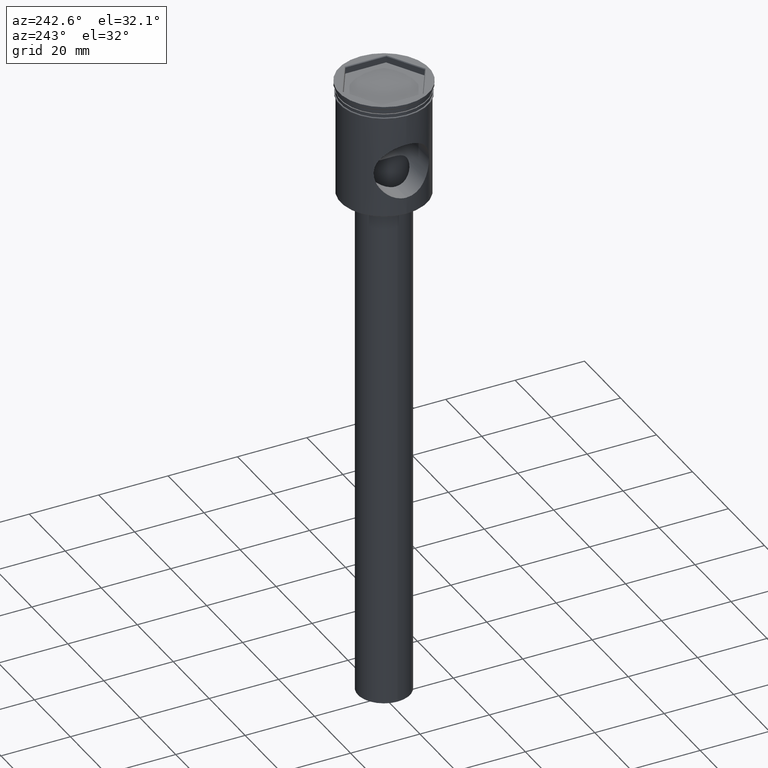
[diagram: clean part render]
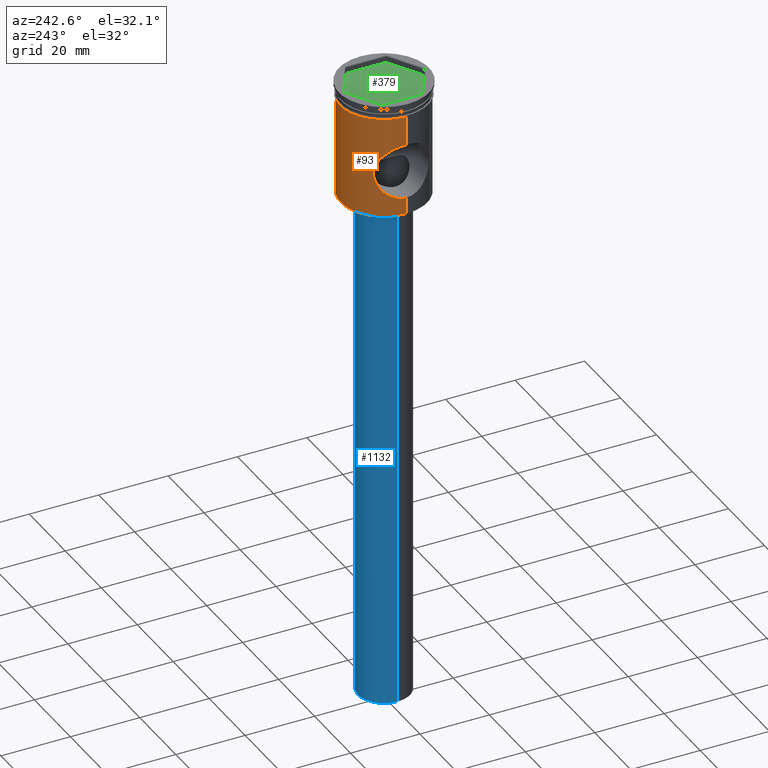
[diagram: same view with three faces highlighted in distinct colors, each labeled with its STEP entity id]
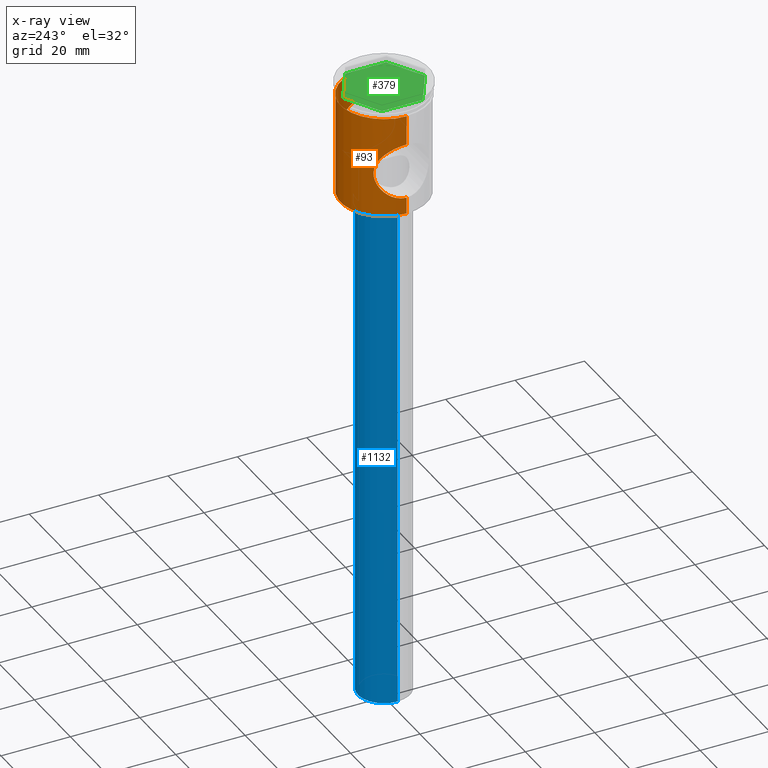
[diagram: x-ray of the same camera — body ghosted, the three highlighted faces saturated]
A machine part, auxiliary view with three faces highlighted in distinct colors.
The next image is the same camera in x-ray (body ghosted, the three faces saturated) — at least one of them is partly hidden behind the body in this view.
Their STEP definitions:

[orange] entity #93 — the highlighted cylindrical surface (partial cylindrical patch) has radius 12.5 mm, axis along (-0, -0, 1).
#6 = DIRECTION ( 'NONE',  ( -0.000000000000000000, -0.000000000000000000, 1.000000000000000000 ) ) ;
#10 = CARTESIAN_POINT ( 'NONE',  ( 12.03968295628938812, 3.370349911399050047, -13.23978673405736117 ) ) ;
#11 = ORIENTED_EDGE ( 'NONE', *, *, #780, .F. ) ;
#16 = CARTESIAN_POINT ( 'NONE',  ( 9.825351555881612242, 7.728608913096384647, -22.63340818634064533 ) ) ;
#22 = CARTESIAN_POINT ( 'NONE',  ( -10.95618371808392233, 6.020532543485914267, -25.77431588019686615 ) ) ;
#30 = CARTESIAN_POINT ( 'NONE',  ( -11.74577852983650494, 4.282367724400621967, -27.26220930574858059 ) ) ;
#31 = CARTESIAN_POINT ( 'NONE',  ( -11.74602063590885059, 4.281685285502878635, -13.73737400827888422 ) ) ;
#33 = ORIENTED_EDGE ( 'NONE', *, *, #1394, .T. ) ;
#43 = CARTESIAN_POINT ( 'NONE',  ( 12.22838080166956054, 2.639999966342853277, -12.92964855857681350 ) ) ;
#54 = CARTESIAN_POINT ( 'NONE',  ( -12.04078069653766647, 3.366168072378722620, -27.76202050384523190 ) ) ;
#58 = CARTESIAN_POINT ( 'NONE',  ( -9.947500648090192854, 7.573601934444265105, -17.87138436146137366 ) ) ;
#63 = CARTESIAN_POINT ( 'NONE',  ( -11.22925266099212571, 5.494954958430610326, -14.68017047912132789 ) ) ;
#82 = B_SPLINE_CURVE_WITH_KNOTS ( 'NONE', 3,
 ( #533, #138, #1007, #890, #164, #746, #630, #754, #993, #1464, #145, #872, #1221, #415, #1227, #1106, #16, #985, #1359, #634, #1352, #154, #1236, #646, #1120, #514, #1388, #1263, #328, #805, #1272, #217, #578, #1142, #423, #1209, #10, #43, #880, #651, #1435, #255, #733, #979 ),
 .UNSPECIFIED., .F., .F.,
 ( 4, 2, 2, 2, 2, 2, 2, 2, 2, 2, 2, 2, 2, 2, 2, 2, 2, 2, 2, 2, 2, 4 ),
 ( 0.000000000000000000, 0.001610624516364215879, 0.003221249032728431758, 0.004831873549092647636, 0.006442498065456863515, 0.007247810323638976225, 0.008053122581821088935, 0.009663747098185310885, 0.01127437161454953631, 0.01207968387273164815, 0.01288499613091376172, 0.01449562064727799755, 0.01530093290546011807, 0.01610624516364224379, 0.01771686968000649870, 0.01932749419637075361, 0.02093811871273501199, 0.02174343097091713944, 0.02254874322909926690, 0.02415936774546352528, 0.02496468000364565273, 0.02576999226182778019 ),
 .UNSPECIFIED. ) ;
#93 = ADVANCED_FACE ( 'NONE', ( #362 ), #1530, .T. ) ;
#120 = EDGE_CURVE ( 'NONE', #822, #259, #335, .T. ) ;
#138 = CARTESIAN_POINT ( 'NONE',  ( 12.49999999999999289, 0.5455086926773380362, -28.50000000000000000 ) ) ;
#141 = ORIENTED_EDGE ( 'NONE', *, *, #1212, .F. ) ;
#142 = LINE ( 'NONE', #1110, #1114 ) ;
#145 = CARTESIAN_POINT ( 'NONE',  ( 10.95759851502932669, 6.017955333637137194, -25.77724630296188479 ) ) ;
#146 = CARTESIAN_POINT ( 'NONE',  ( -10.77171733329285530, 6.344673314144587017, -25.37958406506655251 ) ) ;
#152 = DIRECTION ( 'NONE',  ( -0.000000000000000000, -0.000000000000000000, 1.000000000000000000 ) ) ;
#154 = CARTESIAN_POINT ( 'NONE',  ( 9.604276544737977872, 8.000492014107765115, -19.96508625629939004 ) ) ;
#162 = CARTESIAN_POINT ( 'NONE',  ( -12.49104983426664717, 0.5449417703514869427, -28.48603655335807261 ) ) ;
#164 = CARTESIAN_POINT ( 'NONE',  ( 12.22805391727019675, 2.640680350465369308, -28.06978779834291515 ) ) ;
#171 = CARTESIAN_POINT ( 'NONE',  ( 0.000000000000000000, 0.000000000000000000, -3.999999999999996447 ) ) ;
#173 = EDGE_CURVE ( 'NONE', #958, #1350, #142, .T. ) ;
#178 = CARTESIAN_POINT ( 'NONE',  ( -11.49685725809058567, 4.911092195449596076, -14.17966420493785051 ) ) ;
#190 = CARTESIAN_POINT ( 'NONE',  ( -12.32614486164619372, 2.144181392186815138, -28.22599079984303927 ) ) ;
#192 = CARTESIAN_POINT ( 'NONE',  ( -12.49999999999999822, 0.2686376769289312016, -12.50000000000000533 ) ) ;
#206 = EDGE_LOOP ( 'NONE', ( #33, #390, #772, #1184, #11, #660, #141, #389 ) ) ;
#217 = CARTESIAN_POINT ( 'NONE',  ( 11.32358097886961446, 5.309510908151877651, -14.49404386253077881 ) ) ;
#218 = CARTESIAN_POINT ( 'NONE',  ( -9.604607193058786407, 8.000095042092121744, -20.76536489131949992 ) ) ;
#226 = AXIS2_PLACEMENT_3D ( 'NONE', #778, #152, #1241 ) ;
#239 = VECTOR ( 'NONE', #905, 1000.000000000000000 ) ;
#255 = CARTESIAN_POINT ( 'NONE',  ( 12.49132987171840270, 0.5383245889663403894, -12.51352599534948418 ) ) ;
#259 = VERTEX_POINT ( 'NONE', #1487 ) ;
#268 = AXIS2_PLACEMENT_3D ( 'NONE', #171, #683, #440 ) ;
#277 = CARTESIAN_POINT ( 'NONE',  ( -10.41397768299478166, 6.921782864204723218, -24.54315654720842232 ) ) ;
#287 = VERTEX_POINT ( 'NONE', #1148 ) ;
#307 = CARTESIAN_POINT ( 'NONE',  ( -11.97255694559601125, 3.600821400007697459, -27.64858792036709545 ) ) ;
#310 = CARTESIAN_POINT ( 'NONE',  ( -11.97168173856675466, 3.603696557166357284, -13.35287981243517308 ) ) ;
#314 = CARTESIAN_POINT ( 'NONE',  ( -12.49999999999999645, 0.000000000000000000, -28.50000000000000355 ) ) ;
#315 = CARTESIAN_POINT ( 'NONE',  ( -12.43066710745117298, 1.341388092945101862, -12.60866053316501834 ) ) ;
#321 = CARTESIAN_POINT ( 'NONE',  ( 12.49999999999999645, 0.000000000000000000, 0.000000000000000000 ) ) ;
#322 = CARTESIAN_POINT ( 'NONE',  ( -12.42914744973298191, 1.355224675475571683, -28.38894657095907803 ) ) ;
#328 = CARTESIAN_POINT ( 'NONE',  ( 10.41350288148657377, 6.922544769963280054, -16.45796141815630520 ) ) ;
#329 = CARTESIAN_POINT ( 'NONE',  ( -9.823930086259025529, 7.730428572254550268, -18.37155159375936719 ) ) ;
#335 = LINE ( 'NONE', #1333, #720 ) ;
#362 = FACE_OUTER_BOUND ( 'NONE', #206, .T. ) ;
#373 = EDGE_CURVE ( 'NONE', #287, #1287, #1376, .T. ) ;
#377 = VECTOR ( 'NONE', #496, 1000.000000000000000 ) ;
#389 = ORIENTED_EDGE ( 'NONE', *, *, #373, .F. ) ;
#390 = ORIENTED_EDGE ( 'NONE', *, *, #895, .T. ) ;
#415 = CARTESIAN_POINT ( 'NONE',  ( 10.41453676133786033, 6.920961814154462211, -24.54462048307798128 ) ) ;
#423 = CARTESIAN_POINT ( 'NONE',  ( 11.82354718861211573, 4.063371894608730273, -13.60388813298232513 ) ) ;
#440 = DIRECTION ( 'NONE',  ( 1.000000000000000000, 0.000000000000000000, 0.000000000000000000 ) ) ;
#454 = CARTESIAN_POINT ( 'NONE',  ( -10.95468395994246968, 6.033861169773390820, -15.22247198273765179 ) ) ;
#496 = DIRECTION ( 'NONE',  ( -0.000000000000000000, -0.000000000000000000, 1.000000000000000000 ) ) ;
#514 = CARTESIAN_POINT ( 'NONE',  ( 9.952560460729568348, 7.563483000275685875, -17.88020587650935056 ) ) ;
#524 = CARTESIAN_POINT ( 'NONE',  ( -11.82492588981186543, 4.059453444830931623, -27.39848256787114167 ) ) ;
#529 = CARTESIAN_POINT ( 'NONE',  ( -12.49999999999999645, 0.000000000000000000, -28.50000000000000355 ) ) ;
#533 = CARTESIAN_POINT ( 'NONE',  ( 12.49999999999999645, 0.000000000000000000, -28.50000000000000355 ) ) ;
#547 = CARTESIAN_POINT ( 'NONE',  ( -9.604845950803452936, 7.999808392904742327, -19.96072037956296086 ) ) ;
#578 = CARTESIAN_POINT ( 'NONE',  ( 11.50119995780600846, 4.917095492503141152, -14.16884486330757120 ) ) ;
#579 = CARTESIAN_POINT ( 'NONE',  ( -9.833011243020195025, 7.718267162390876734, -22.62081358739451176 ) ) ;
#614 = CARTESIAN_POINT ( 'NONE',  ( -11.04913184632836121, 5.848685773200739568, -25.96419292266337919 ) ) ;
#625 = CARTESIAN_POINT ( 'NONE',  ( -12.49999999999999645, 1.530808498934191127E-15, 0.000000000000000000 ) ) ;
#630 = CARTESIAN_POINT ( 'NONE',  ( 11.83084558445469980, 4.061114290533304860, -27.41204444593460821 ) ) ;
#631 = CARTESIAN_POINT ( 'NONE',  ( 12.49999999999999645, 0.000000000000000000, -28.50000000000000355 ) ) ;
#634 = CARTESIAN_POINT ( 'NONE',  ( 9.616846497738414712, 7.985458352474513966, -21.05224936486945353 ) ) ;
#639 = CIRCLE ( 'NONE', #268, 12.50000000000000000 ) ;
#641 = CARTESIAN_POINT ( 'NONE',  ( -12.49134899006260824, 0.5368360781239408519, -12.51349676487751594 ) ) ;
#646 = CARTESIAN_POINT ( 'NONE',  ( 9.778867081615890910, 7.786427190026567580, -18.64438907348872476 ) ) ;
#651 = CARTESIAN_POINT ( 'NONE',  ( 12.43000214087199851, 1.347259841825428239, -12.60970857887207153 ) ) ;
#660 = ORIENTED_EDGE ( 'NONE', *, *, #120, .F. ) ;
#673 = CARTESIAN_POINT ( 'NONE',  ( -12.04102128605738464, 3.365482873782087658, -13.23757297846051451 ) ) ;
#674 = CARTESIAN_POINT ( 'NONE',  ( 12.49999999999999645, -3.475392982267206074E-20, -12.50000000000000178 ) ) ;
#683 = DIRECTION ( 'NONE',  ( -0.000000000000000000, -0.000000000000000000, 1.000000000000000000 ) ) ;
#685 = CARTESIAN_POINT ( 'NONE',  ( -9.694572521403607368, 7.891132293869996595, -21.84205955273028010 ) ) ;
#689 = CARTESIAN_POINT ( 'NONE',  ( -12.49999999999999645, 1.530843252841608374E-15, -12.50000000000000178 ) ) ;
#714 = DIRECTION ( 'NONE',  ( 1.000000000000000000, 0.000000000000000000, 0.000000000000000000 ) ) ;
#720 = VECTOR ( 'NONE', #6, 1000.000000000000000 ) ;
#733 = CARTESIAN_POINT ( 'NONE',  ( 12.49999999999999822, 0.2689421781267094524, -12.50000000000000178 ) ) ;
#746 = CARTESIAN_POINT ( 'NONE',  ( 11.97893811598799729, 3.606041726093997646, -27.66040104288469692 ) ) ;
#754 = CARTESIAN_POINT ( 'NONE',  ( 11.50038868166273787, 4.919615502726670364, -26.82980181432884237 ) ) ;
#765 = CARTESIAN_POINT ( 'NONE',  ( -12.32814927920563264, 2.133064077394900337, -12.77081634138414401 ) ) ;
#768 = CARTESIAN_POINT ( 'NONE',  ( -10.24506394556385125, 7.166030281330027840, -24.09455026104629738 ) ) ;
#772 = ORIENTED_EDGE ( 'NONE', *, *, #1285, .F. ) ;
#778 = CARTESIAN_POINT ( 'NONE',  ( 0.000000000000000000, 0.000000000000000000, -33.29999999999998295 ) ) ;
#780 = EDGE_CURVE ( 'NONE', #259, #1350, #639, .T. ) ;
#793 = CARTESIAN_POINT ( 'NONE',  ( -11.82426725651903610, 4.061341696050350336, -13.60264837205234301 ) ) ;
#798 = CARTESIAN_POINT ( 'NONE',  ( -12.45574482229450020, 1.085222749987466040, -28.43070192023093412 ) ) ;
#805 = CARTESIAN_POINT ( 'NONE',  ( 10.77000853576665840, 6.353706358841936463, -15.61224821672883678 ) ) ;
#813 = CARTESIAN_POINT ( 'NONE',  ( -9.650481006454381117, 7.945901119098953025, -19.42646661241498052 ) ) ;
#822 = VERTEX_POINT ( 'NONE', #674 ) ;
#832 = DIRECTION ( 'NONE',  ( -0.000000000000000000, -0.000000000000000000, 1.000000000000000000 ) ) ;
#870 = CARTESIAN_POINT ( 'NONE',  ( -12.49999999999999645, 0.2724455289350976028, -28.50000000000000000 ) ) ;
#872 = CARTESIAN_POINT ( 'NONE',  ( 10.77326865999855166, 6.342037053953381687, -25.38299917530804350 ) ) ;
#880 = CARTESIAN_POINT ( 'NONE',  ( 12.32774079225238495, 2.134726252461476292, -12.77147006255823136 ) ) ;
#890 = CARTESIAN_POINT ( 'NONE',  ( 12.32937529947440147, 2.124696089697953649, -28.23112845639077761 ) ) ;
#895 = EDGE_CURVE ( 'NONE', #1235, #1325, #1099, .T. ) ;
#901 = CARTESIAN_POINT ( 'NONE',  ( -12.22681975302657520, 2.645907749991195601, -28.06777968347508434 ) ) ;
#905 = DIRECTION ( 'NONE',  ( -0.000000000000000000, -0.000000000000000000, 1.000000000000000000 ) ) ;
#925 = CARTESIAN_POINT ( 'NONE',  ( -10.41381587689204302, 6.922042856426296353, -16.45722377159888694 ) ) ;
#945 = CIRCLE ( 'NONE', #226, 12.49999999999999645 ) ;
#949 = CARTESIAN_POINT ( 'NONE',  ( -12.49999999999999645, 1.530808498934191127E-15, -33.29999999999998295 ) ) ;
#958 = VERTEX_POINT ( 'NONE', #689 ) ;
#969 = DIRECTION ( 'NONE',  ( -0.000000000000000000, -0.000000000000000000, 1.000000000000000000 ) ) ;
#979 = CARTESIAN_POINT ( 'NONE',  ( 12.49999999999999645, -3.475392982267206074E-20, -12.50000000000000178 ) ) ;
#983 = CARTESIAN_POINT ( 'NONE',  ( -10.02253038761470982, 7.470924704462464483, -23.37288695449094433 ) ) ;
#985 = CARTESIAN_POINT ( 'NONE',  ( 9.695983281617307270, 7.889400511741192723, -21.85205995452213301 ) ) ;
#993 = CARTESIAN_POINT ( 'NONE',  ( 11.32278361962054802, 5.310903790031502147, -26.50427824932999243 ) ) ;
#1000 = CARTESIAN_POINT ( 'NONE',  ( -12.45680753857803147, 1.072351860696458381, -12.56763034230890774 ) ) ;
#1007 = CARTESIAN_POINT ( 'NONE',  ( 12.46447579769007774, 1.079199628273470157, -28.44481018307721243 ) ) ;
#1017 = CARTESIAN_POINT ( 'NONE',  ( -12.50000000000000000, 1.530808498934191521E-15, -3.999999999999996447 ) ) ;
#1025 = CARTESIAN_POINT ( 'NONE',  ( -9.660877953051818068, 7.932130301633682379, -21.57471352266809106 ) ) ;
#1040 = AXIS2_PLACEMENT_3D ( 'NONE', #1508, #832, #714 ) ;
#1099 = LINE ( 'NONE', #625, #377 ) ;
#1106 = CARTESIAN_POINT ( 'NONE',  ( 9.951847861737379120, 7.567903109691757280, -23.14472692481474425 ) ) ;
#1110 = CARTESIAN_POINT ( 'NONE',  ( -12.49999999999999645, 1.530808498934191127E-15, 0.000000000000000000 ) ) ;
#1114 = VECTOR ( 'NONE', #969, 1000.000000000000000 ) ;
#1120 = CARTESIAN_POINT ( 'NONE',  ( 9.831927431485986801, 7.719646222588846030, -18.38418844340872127 ) ) ;
#1142 = CARTESIAN_POINT ( 'NONE',  ( 11.74563317290944831, 4.282692903467038903, -13.73805650301568093 ) ) ;
#1148 = CARTESIAN_POINT ( 'NONE',  ( 12.49999999999999645, 0.000000000000000000, -33.29999999999998295 ) ) ;
#1153 = CARTESIAN_POINT ( 'NONE',  ( -10.24171529436143402, 7.170737983946684935, -16.91536847051583692 ) ) ;
#1158 = CARTESIAN_POINT ( 'NONE',  ( -9.780592607289706919, 7.784260626568318742, -22.36450508717212671 ) ) ;
#1167 = CARTESIAN_POINT ( 'NONE',  ( -9.615781582082339796, 7.986738915949612938, -21.03451077291008531 ) ) ;
#1184 = ORIENTED_EDGE ( 'NONE', *, *, #173, .T. ) ;
#1209 = CARTESIAN_POINT ( 'NONE',  ( 11.97039897339418246, 3.607881330226543781, -13.35503377591462559 ) ) ;
#1212 = EDGE_CURVE ( 'NONE', #1287, #822, #82, .T. ) ;
#1221 = CARTESIAN_POINT ( 'NONE',  ( 10.68141965030587848, 6.495024738260809727, -25.17753358840528932 ) ) ;
#1222 = CARTESIAN_POINT ( 'NONE',  ( -10.68057655226026803, 6.496405684036826500, -25.17560278568680943 ) ) ;
#1227 = CARTESIAN_POINT ( 'NONE',  ( 10.24633185769106802, 7.164154995734958398, -24.09758546550434488 ) ) ;
#1235 = VERTEX_POINT ( 'NONE', #949 ) ;
#1236 = CARTESIAN_POINT ( 'NONE',  ( 9.650015180279874372, 7.946443617263751591, -19.43182631452544484 ) ) ;
#1241 = DIRECTION ( 'NONE',  ( -1.000000000000000000, 0.000000000000000000, 0.000000000000000000 ) ) ;
#1243 = CARTESIAN_POINT ( 'NONE',  ( -12.49999999999999645, 1.530843252841608374E-15, -12.50000000000000178 ) ) ;
#1251 = CARTESIAN_POINT ( 'NONE',  ( -12.22865895483605314, 2.638290072440495848, -12.92921996348514924 ) ) ;
#1263 = CARTESIAN_POINT ( 'NONE',  ( 10.24149294623592965, 7.171072586796541692, -16.91585289741309595 ) ) ;
#1266 = CARTESIAN_POINT ( 'NONE',  ( -9.953764986108037505, 7.561899278404374591, -23.12434326371112192 ) ) ;
#1272 = CARTESIAN_POINT ( 'NONE',  ( 10.95569943340932717, 6.032167288263485361, -15.22028665405100512 ) ) ;
#1285 = EDGE_CURVE ( 'NONE', #958, #1325, #1385, .T. ) ;
#1287 = VERTEX_POINT ( 'NONE', #631 ) ;
#1325 = VERTEX_POINT ( 'NONE', #314 ) ;
#1333 = CARTESIAN_POINT ( 'NONE',  ( 12.49999999999999645, 0.000000000000000000, 0.000000000000000000 ) ) ;
#1334 = CARTESIAN_POINT ( 'NONE',  ( -10.76964293615448653, 6.354292206984882618, -15.61311065325000591 ) ) ;
#1350 = VERTEX_POINT ( 'NONE', #1017 ) ;
#1352 = CARTESIAN_POINT ( 'NONE',  ( 9.604895432773121300, 7.999748985399197210, -20.77841958597585403 ) ) ;
#1359 = CARTESIAN_POINT ( 'NONE',  ( 9.662429422409399393, 7.930242071786063995, -21.58801890745425212 ) ) ;
#1376 = LINE ( 'NONE', #321, #239 ) ;
#1385 = B_SPLINE_CURVE_WITH_KNOTS ( 'NONE', 3,
 ( #1243, #192, #641, #1000, #315, #765, #1251, #673, #310, #793, #31, #1471, #178, #1490, #63, #454, #1334, #925, #1153, #58, #329, #813, #547, #218, #1167, #1025, #685, #1158, #579, #1266, #983, #768, #277, #1222, #146, #22, #614, #1548, #1434, #30, #524, #307, #54, #901, #190, #322, #798, #162, #870, #529 ),
 .UNSPECIFIED., .F., .F.,
 ( 4, 2, 2, 2, 2, 2, 2, 2, 2, 2, 2, 2, 2, 2, 2, 2, 2, 2, 2, 2, 2, 2, 2, 2, 4 ),
 ( 0.02576999226182778366, 0.02657439273090745832, 0.02737879319998713298, 0.02898759413814647884, 0.02979199460722615350, 0.03059639507630582123, 0.03140079554538549589, 0.03220519601446516361, 0.03381399695262450600, 0.03542279789078384145, 0.03703159882894318383, 0.03864039976710252622, 0.03944480023618218700, 0.04024920070526185473, 0.04105360117434152245, 0.04185800164342118324, 0.04346680258158051868, 0.04427120305066018641, 0.04507560351973985413, 0.04668440445789921039, 0.04748880492697887812, 0.04829320539605855278, 0.04990200633421790211, 0.05070640680329757677, 0.05151080727237725143 ),
 .UNSPECIFIED. ) ;
#1388 = CARTESIAN_POINT ( 'NONE',  ( 10.02037738876441253, 7.473797691934480625, -17.63469963449613331 ) ) ;
#1394 = EDGE_CURVE ( 'NONE', #287, #1235, #945, .T. ) ;
#1434 = CARTESIAN_POINT ( 'NONE',  ( -11.49979938796715118, 4.920626020369353704, -26.82866744699284567 ) ) ;
#1435 = CARTESIAN_POINT ( 'NONE',  ( 12.45636595211378861, 1.077990071471292666, -12.56832314098377346 ) ) ;
#1464 = CARTESIAN_POINT ( 'NONE',  ( 11.04973041360231534, 5.847541344671410180, -25.96539333561140950 ) ) ;
#1471 = CARTESIAN_POINT ( 'NONE',  ( -11.58231855636714513, 4.706562070356852701, -14.02588132130155962 ) ) ;
#1487 = CARTESIAN_POINT ( 'NONE',  ( 12.50000000000000000, 0.000000000000000000, -3.999999999999996447 ) ) ;
#1490 = CARTESIAN_POINT ( 'NONE',  ( -11.32051845556725489, 5.304942531477344403, -14.50641544213543455 ) ) ;
#1508 = CARTESIAN_POINT ( 'NONE',  ( 0.000000000000000000, 0.000000000000000000, 0.000000000000000000 ) ) ;
#1530 = CYLINDRICAL_SURFACE ( 'NONE', #1040, 12.49999999999999645 ) ;
#1548 = CARTESIAN_POINT ( 'NONE',  ( -11.32275814528974500, 5.311017539796694997, -26.50426606429732601 ) ) ;

[blue] entity #1132 — the highlighted cylindrical surface (edge-blend (fillet) strip) has radius 7.5 mm, axis along (-0, -0, 1).
#64 = CARTESIAN_POINT ( 'NONE',  ( 0.000000000000000000, 0.000000000000000000, -183.5000000000000000 ) ) ;
#95 = CARTESIAN_POINT ( 'NONE',  ( 0.000000000000000000, 0.000000000000000000, -36.50000000000000711 ) ) ;
#132 = VECTOR ( 'NONE', #826, 1000.000000000000000 ) ;
#202 = LINE ( 'NONE', #939, #132 ) ;
#220 = ORIENTED_EDGE ( 'NONE', *, *, #228, .F. ) ;
#228 = EDGE_CURVE ( 'NONE', #597, #1298, #1349, .T. ) ;
#273 = EDGE_LOOP ( 'NONE', ( #419, #492, #1249, #220 ) ) ;
#279 = CARTESIAN_POINT ( 'NONE',  ( -7.500000000000000000, 9.184850993605147944E-16, -36.50000000000000711 ) ) ;
#292 = VECTOR ( 'NONE', #1019, 1000.000000000000000 ) ;
#326 = DIRECTION ( 'NONE',  ( -1.000000000000000000, 0.000000000000000000, 0.000000000000000000 ) ) ;
#419 = ORIENTED_EDGE ( 'NONE', *, *, #1244, .F. ) ;
#492 = ORIENTED_EDGE ( 'NONE', *, *, #1192, .T. ) ;
#497 = CARTESIAN_POINT ( 'NONE',  ( 7.500000000000000000, 0.000000000000000000, -183.5000000000000000 ) ) ;
#534 = DIRECTION ( 'NONE',  ( -0.000000000000000000, -0.000000000000000000, 1.000000000000000000 ) ) ;
#593 = DIRECTION ( 'NONE',  ( 0.000000000000000000, 0.000000000000000000, -1.000000000000000000 ) ) ;
#597 = VERTEX_POINT ( 'NONE', #497 ) ;
#647 = CYLINDRICAL_SURFACE ( 'NONE', #860, 7.500000000000000000 ) ;
#704 = CIRCLE ( 'NONE', #1484, 7.500000000000000000 ) ;
#727 = CARTESIAN_POINT ( 'NONE',  ( -7.500000000000000000, 9.184850993605147944E-16, -183.5000000000000000 ) ) ;
#759 = CARTESIAN_POINT ( 'NONE',  ( 7.500000000000000000, 0.000000000000000000, -183.5000000000000000 ) ) ;
#826 = DIRECTION ( 'NONE',  ( -0.000000000000000000, -0.000000000000000000, 1.000000000000000000 ) ) ;
#860 = AXIS2_PLACEMENT_3D ( 'NONE', #1021, #534, #891 ) ;
#879 = FACE_OUTER_BOUND ( 'NONE', #273, .T. ) ;
#889 = VERTEX_POINT ( 'NONE', #279 ) ;
#891 = DIRECTION ( 'NONE',  ( 1.000000000000000000, 0.000000000000000000, 0.000000000000000000 ) ) ;
#939 = CARTESIAN_POINT ( 'NONE',  ( -7.500000000000000000, 9.184850993605147944E-16, -183.5000000000000000 ) ) ;
#997 = DIRECTION ( 'NONE',  ( 0.000000000000000000, 0.000000000000000000, -1.000000000000000000 ) ) ;
#1003 = CARTESIAN_POINT ( 'NONE',  ( 7.500000000000000000, 0.000000000000000000, -36.50000000000000711 ) ) ;
#1019 = DIRECTION ( 'NONE',  ( -0.000000000000000000, -0.000000000000000000, 1.000000000000000000 ) ) ;
#1020 = VERTEX_POINT ( 'NONE', #727 ) ;
#1021 = CARTESIAN_POINT ( 'NONE',  ( 0.000000000000000000, 0.000000000000000000, -183.5000000000000000 ) ) ;
#1065 = DIRECTION ( 'NONE',  ( -1.000000000000000000, 0.000000000000000000, 0.000000000000000000 ) ) ;
#1132 = ADVANCED_FACE ( 'NONE', ( #879 ), #647, .T. ) ;
#1192 = EDGE_CURVE ( 'NONE', #1020, #889, #202, .T. ) ;
#1196 = EDGE_CURVE ( 'NONE', #889, #1298, #1216, .T. ) ;
#1216 = CIRCLE ( 'NONE', #1460, 7.500000000000000000 ) ;
#1244 = EDGE_CURVE ( 'NONE', #1020, #597, #704, .T. ) ;
#1249 = ORIENTED_EDGE ( 'NONE', *, *, #1196, .T. ) ;
#1298 = VERTEX_POINT ( 'NONE', #1003 ) ;
#1349 = LINE ( 'NONE', #759, #292 ) ;
#1460 = AXIS2_PLACEMENT_3D ( 'NONE', #95, #593, #1065 ) ;
#1484 = AXIS2_PLACEMENT_3D ( 'NONE', #64, #997, #326 ) ;

[green] entity #379 — the highlighted planar face has unit normal (-0, 0, 1).
#28 = DIRECTION ( 'NONE',  ( 0.8660254037844387076, -0.4999999999999998890, 0.000000000000000000 ) ) ;
#52 = VERTEX_POINT ( 'NONE', #223 ) ;
#67 = EDGE_CURVE ( 'NONE', #944, #1087, #1406, .T. ) ;
#140 = DIRECTION ( 'NONE',  ( 2.945714899484625339E-16, 1.000000000000000000, 0.000000000000000000 ) ) ;
#147 = DIRECTION ( 'NONE',  ( 0.8660254037844388186, 0.4999999999999996669, 0.000000000000000000 ) ) ;
#148 = EDGE_CURVE ( 'NONE', #580, #52, #1326, .T. ) ;
#166 = CARTESIAN_POINT ( 'NONE',  ( -10.20000000000000107, -5.888972745734181835, -2.000000000000000000 ) ) ;
#195 = DIRECTION ( 'NONE',  ( 1.000000000000000000, 0.000000000000000000, 0.000000000000000000 ) ) ;
#215 = EDGE_CURVE ( 'NONE', #52, #1154, #283, .T. ) ;
#223 = CARTESIAN_POINT ( 'NONE',  ( -10.20000000000000107, -5.888972745734181835, -2.000000000000000000 ) ) ;
#283 = LINE ( 'NONE', #166, #489 ) ;
#298 = EDGE_CURVE ( 'NONE', #1087, #580, #898, .T. ) ;
#306 = ORIENTED_EDGE ( 'NONE', *, *, #1398, .T. ) ;
#311 = CARTESIAN_POINT ( 'NONE',  ( 1.734723475976807094E-15, 11.77794549146836367, -2.000000000000000000 ) ) ;
#341 = DIRECTION ( 'NONE',  ( -0.000000000000000000, 0.000000000000000000, 1.000000000000000000 ) ) ;
#379 = ADVANCED_FACE ( 'NONE', ( #571 ), #797, .T. ) ;
#392 = CARTESIAN_POINT ( 'NONE',  ( -10.20000000000000107, 5.888972745734180059, -2.000000000000000000 ) ) ;
#400 = LINE ( 'NONE', #785, #1539 ) ;
#413 = ORIENTED_EDGE ( 'NONE', *, *, #148, .T. ) ;
#458 = VERTEX_POINT ( 'NONE', #1501 ) ;
#467 = EDGE_LOOP ( 'NONE', ( #1273, #676, #413, #1347, #306, #678 ) ) ;
#489 = VECTOR ( 'NONE', #28, 1000.000000000000114 ) ;
#571 = FACE_OUTER_BOUND ( 'NONE', #467, .T. ) ;
#580 = VERTEX_POINT ( 'NONE', #392 ) ;
#603 = EDGE_CURVE ( 'NONE', #458, #944, #757, .T. ) ;
#613 = CARTESIAN_POINT ( 'NONE',  ( 1.734723475976807094E-15, 11.77794549146836367, -2.000000000000000000 ) ) ;
#619 = VECTOR ( 'NONE', #709, 1000.000000000000114 ) ;
#676 = ORIENTED_EDGE ( 'NONE', *, *, #298, .T. ) ;
#678 = ORIENTED_EDGE ( 'NONE', *, *, #603, .T. ) ;
#701 = CARTESIAN_POINT ( 'NONE',  ( 10.20000000000000284, 5.888972745734183611, -2.000000000000000000 ) ) ;
#709 = DIRECTION ( 'NONE',  ( -0.8660254037844387076, 0.4999999999999997780, 0.000000000000000000 ) ) ;
#752 = DIRECTION ( 'NONE',  ( 0.000000000000000000, -1.000000000000000000, 0.000000000000000000 ) ) ;
#757 = LINE ( 'NONE', #1323, #858 ) ;
#764 = CARTESIAN_POINT ( 'NONE',  ( 10.20000000000000284, 5.888972745734183611, -2.000000000000000000 ) ) ;
#785 = CARTESIAN_POINT ( 'NONE',  ( -8.673617379884035472E-16, -11.77794549146836367, -2.000000000000000000 ) ) ;
#788 = DIRECTION ( 'NONE',  ( -0.8660254037844387076, -0.4999999999999999445, 0.000000000000000000 ) ) ;
#790 = AXIS2_PLACEMENT_3D ( 'NONE', #1051, #341, #195 ) ;
#797 = PLANE ( 'NONE',  #790 ) ;
#858 = VECTOR ( 'NONE', #140, 1000.000000000000000 ) ;
#898 = LINE ( 'NONE', #311, #1454 ) ;
#944 = VERTEX_POINT ( 'NONE', #764 ) ;
#1009 = VECTOR ( 'NONE', #752, 1000.000000000000000 ) ;
#1051 = CARTESIAN_POINT ( 'NONE',  ( 0.000000000000000000, 0.000000000000000000, -2.000000000000000000 ) ) ;
#1087 = VERTEX_POINT ( 'NONE', #613 ) ;
#1154 = VERTEX_POINT ( 'NONE', #1498 ) ;
#1215 = CARTESIAN_POINT ( 'NONE',  ( -10.20000000000000107, 5.888972745734180059, -2.000000000000000000 ) ) ;
#1273 = ORIENTED_EDGE ( 'NONE', *, *, #67, .T. ) ;
#1323 = CARTESIAN_POINT ( 'NONE',  ( 10.19999999999999929, -5.888972745734185388, -2.000000000000000000 ) ) ;
#1326 = LINE ( 'NONE', #1215, #1009 ) ;
#1347 = ORIENTED_EDGE ( 'NONE', *, *, #215, .T. ) ;
#1398 = EDGE_CURVE ( 'NONE', #1154, #458, #400, .T. ) ;
#1406 = LINE ( 'NONE', #701, #619 ) ;
#1454 = VECTOR ( 'NONE', #788, 999.9999999999998863 ) ;
#1498 = CARTESIAN_POINT ( 'NONE',  ( -8.673617379884035472E-16, -11.77794549146836367, -2.000000000000000000 ) ) ;
#1501 = CARTESIAN_POINT ( 'NONE',  ( 10.19999999999999929, -5.888972745734185388, -2.000000000000000000 ) ) ;
#1539 = VECTOR ( 'NONE', #147, 1000.000000000000000 ) ;